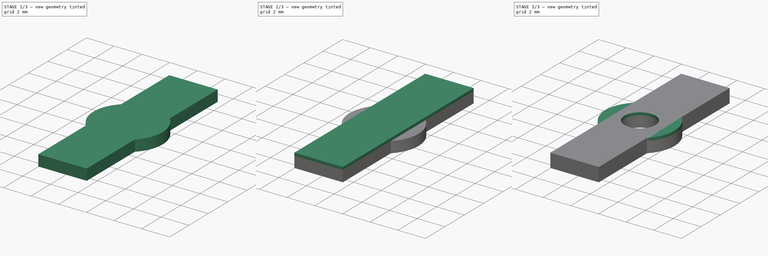
[diagram: build sequence overview — one tinted view per stage of 3, left to right]
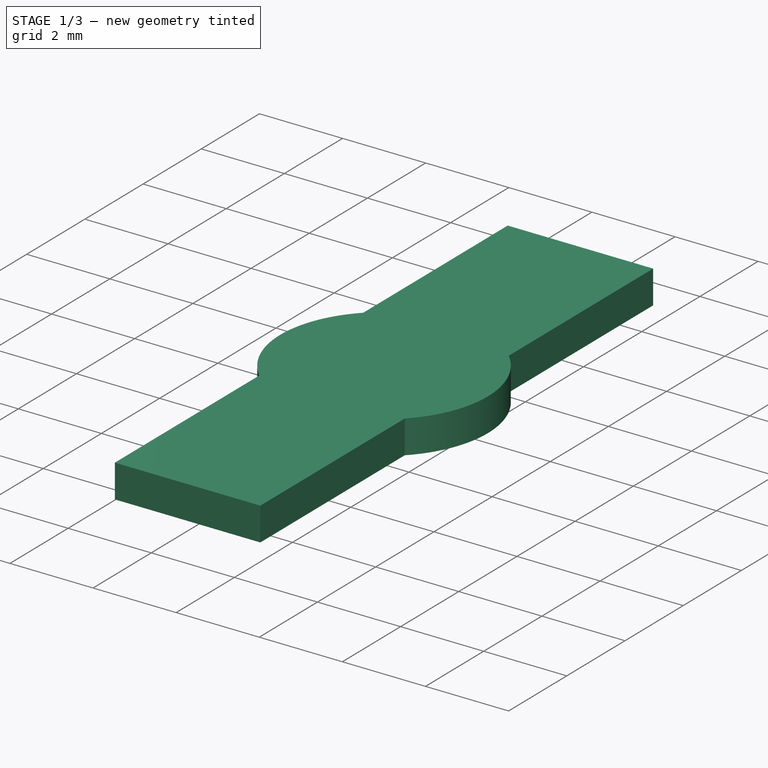
[diagram: stage 1 of 3 — iso view after this stage's code; geometry added in this stage tinted green]
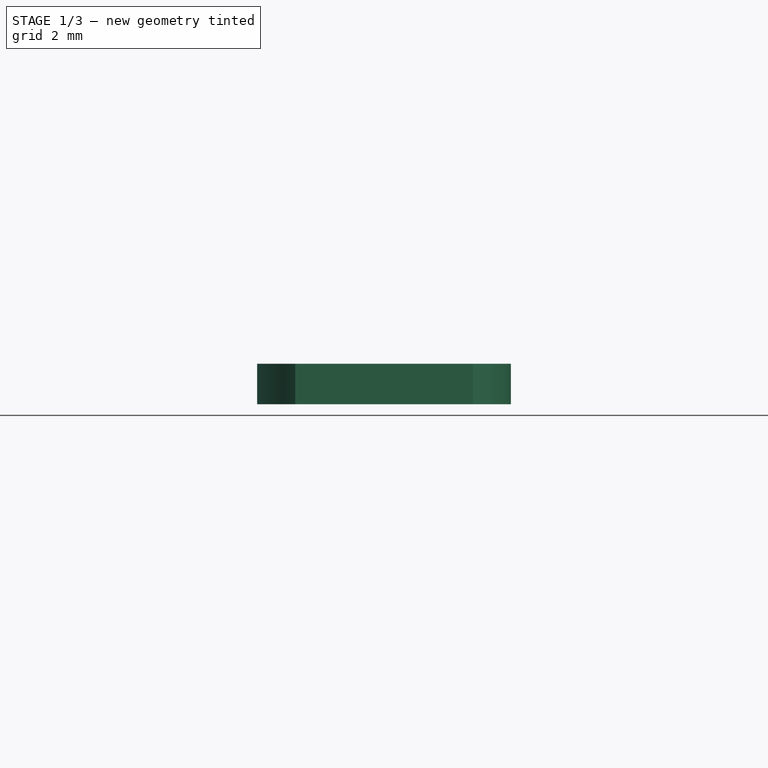
[diagram: stage 1 of 3 — front view after this stage's code; geometry added in this stage tinted green]
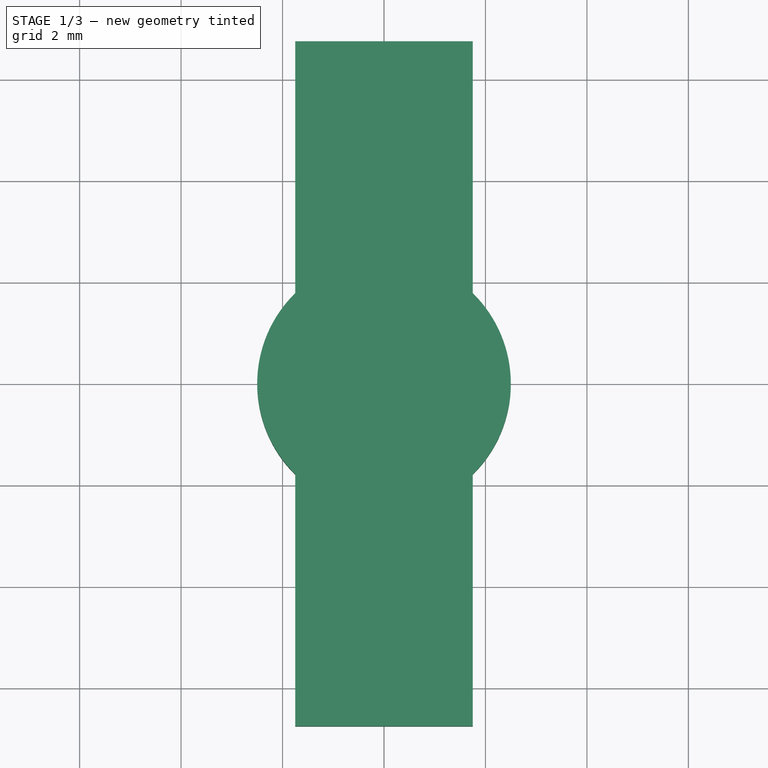
[diagram: stage 1 of 3 — top view after this stage's code; geometry added in this stage tinted green]
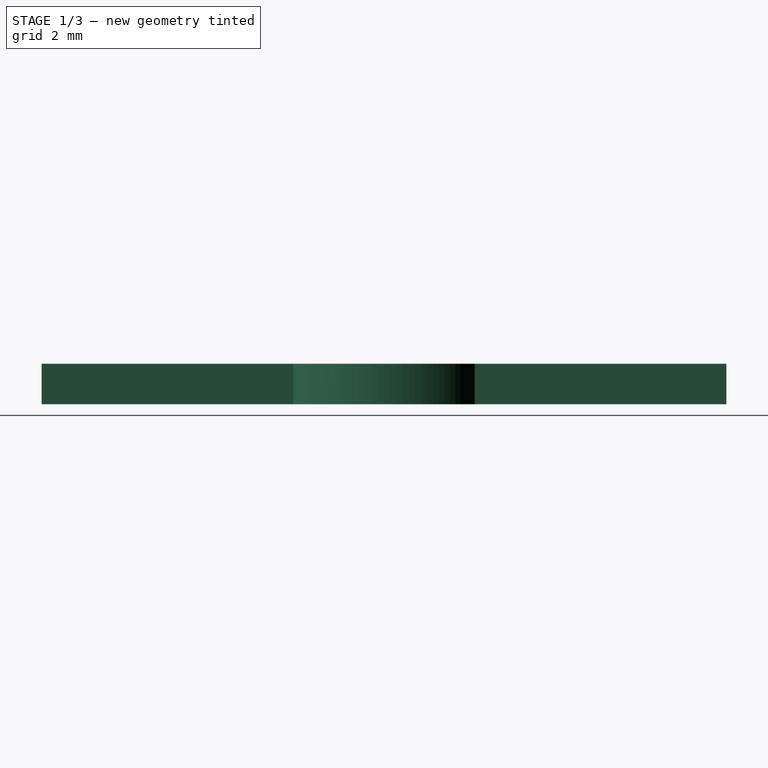
[diagram: stage 1 of 3 — right view after this stage's code; geometry added in this stage tinted green]
FCSTD DOCUMENT  (FreeCAD 0.18.4R)
Label: Stir_Bar
License: All rights reserved
LicenseURL: http://en.wikipedia.org/wiki/All_rights_reserved
objects: Sketcher::SketchObject×7, PartDesign::Pad×4, PartDesign::Pocket×3, PartDesign::Body×1
note: 22 computed .brp shape members not serialized (recipe doc carries the construction recipe); baked Part::Feature solids carry a one-line shape summary decoded from their .brp

FEATURE [Sketcher::SketchObject] Sketch
  MapMode = 5
  Support = -> [XY_Plane]
  sketch-geometry (4):
    g0: LineSegment StartX=-1.75 StartY=6.75 StartZ=0 EndX=1.75 EndY=6.75 EndZ=0
    g1: LineSegment StartX=1.75 StartY=6.75 StartZ=0 EndX=1.75 EndY=-6.75 EndZ=0
    g2: LineSegment StartX=1.75 StartY=-6.75 StartZ=0 EndX=-1.75 EndY=-6.75 EndZ=0
    g3: LineSegment StartX=-1.75 StartY=-6.75 StartZ=0 EndX=-1.75 EndY=6.75 EndZ=0
  constraints (12):
    c: Coincident(g0,g1)
    c: Coincident(g1,g2)
    c: Coincident(g2,g3)
    c: Coincident(g3,g0)
    c: Horizontal(g0)
    c: Horizontal(g2)
    c: Vertical(g1)
    c: Vertical(g3)
    c: Distance(g3) = 13.5
    c: Distance(g0) = 3.5
    c: DistanceX(g-1,g0) = 1.75
    c: DistanceY(g1,g-1) = 6.75
FEATURE [PartDesign::Pad] Pad
  Length = 0.8
  Length2 = 100
  Profile = -> Sketch
  Type = 0
FEATURE [Sketcher::SketchObject] Sketch001
  MapMode = 5
  Placement = pos=(0,0,0.8) rot=(0,0,1;0rad)
  Support = -> [Pad]
  sketch-geometry (1):
    g0: Circle CenterX=0 CenterY=0 CenterZ=0 NormalX=0 NormalY=0 NormalZ=1 AngleXU=0 Radius=1.125
  constraints (2):
    c: Coincident(g0,g-1)
    c: Diameter(g0) = 2.25
FEATURE [Sketcher::SketchObject] Sketch002
  MapMode = 5
  Placement = pos=(0,0,1.3) rot=(0,0,1;0rad)
  sketch-geometry (8):
    g0: LineSegment StartX=-0.5 StartY=5.95 StartZ=0 EndX=0.5 EndY=5.95 EndZ=0
    g1: LineSegment StartX=0.5 StartY=5.95 StartZ=0 EndX=0.5 EndY=2 EndZ=0
    g2: LineSegment StartX=0.5 StartY=2 StartZ=0 EndX=-0.5 EndY=2 EndZ=0
    g3: LineSegment StartX=-0.5 StartY=2 StartZ=0 EndX=-0.5 EndY=5.95 EndZ=0
    g4: LineSegment StartX=-0.5 StartY=-2 StartZ=0 EndX=0.5 EndY=-2 EndZ=0
    g5: LineSegment StartX=0.5 StartY=-2 StartZ=0 EndX=0.5 EndY=-5.95 EndZ=0
    g6: LineSegment StartX=0.5 StartY=-5.95 StartZ=0 EndX=-0.5 EndY=-5.95 EndZ=0
    g7: LineSegment StartX=-0.5 StartY=-5.95 StartZ=0 EndX=-0.5 EndY=-2 EndZ=0
  constraints (24):
    c: Coincident(g0,g1)
    c: Coincident(g1,g2)
    c: Coincident(g2,g3)
    c: Coincident(g3,g0)
    c: Horizontal(g0)
    c: Horizontal(g2)
    c: Vertical(g1)
    c: Vertical(g3)
    c: DistanceY(g-1,g0) = 5.95
    c: Distance(g0) = 1
    c: DistanceY(g-1,g1) = 2
    c: DistanceX(g-1,g1) = 0.5
    c: Coincident(g4,g5)
    c: Coincident(g5,g6)
    c: Coincident(g6,g7)
    c: Coincident(g7,g4)
    c: Horizontal(g4)
    c: Horizontal(g6)
    c: Vertical(g5)
    c: Vertical(g7)
    c: DistanceY(g6,g-1) = 5.95
    c: DistanceY(g4,g-1) = 2
    c: Distance(g6) = 1
    c: DistanceX(g-1,g4) = 0.5
FEATURE [Sketcher::SketchObject] Sketch003
  MapMode = 5
  Placement = pos=(0,0,0.8) rot=(0,0,1;0rad)
  Support = -> [Pad]
  sketch-geometry (1):
    g0: Circle CenterX=0 CenterY=0 CenterZ=0 NormalX=0 NormalY=0 NormalZ=1 AngleXU=0 Radius=2.5
  constraints (2):
    c: Coincident(g0,g-1)
    c: Diameter(g0) = 5
FEATURE [PartDesign::Pad] Pad001
  BaseFeature = -> Pad
  Length = 0.8
  Length2 = 100
  Profile = -> Sketch003
  Reversed = true
  Type = 0
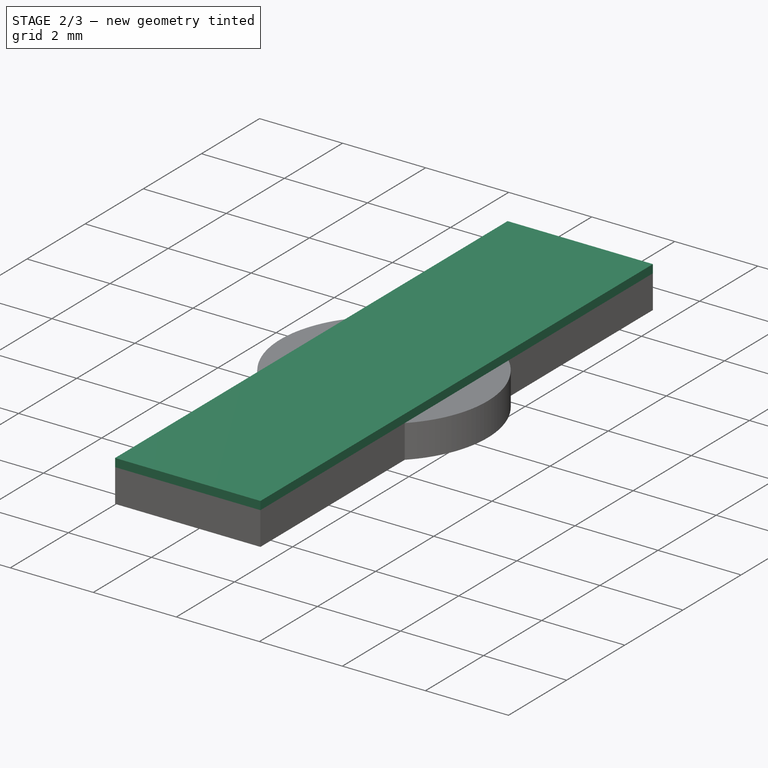
[diagram: stage 2 of 3 — iso view after this stage's code; geometry added in this stage tinted green]
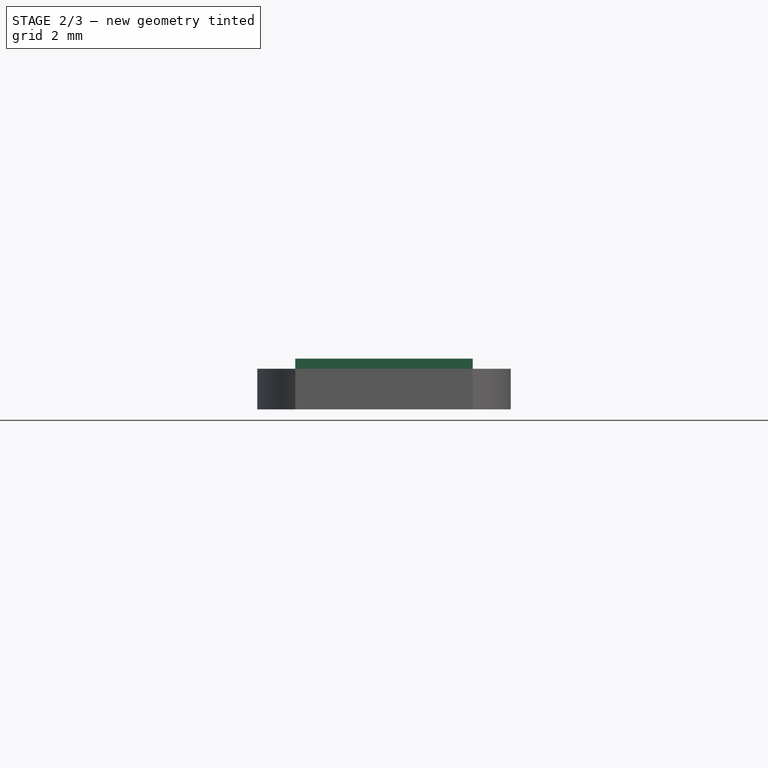
[diagram: stage 2 of 3 — front view after this stage's code; geometry added in this stage tinted green]
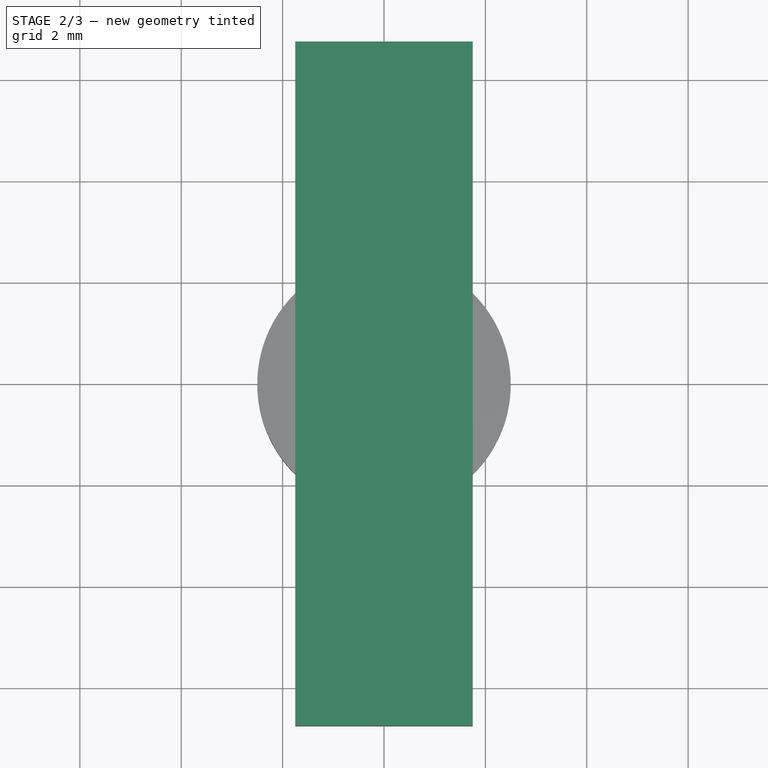
[diagram: stage 2 of 3 — top view after this stage's code; geometry added in this stage tinted green]
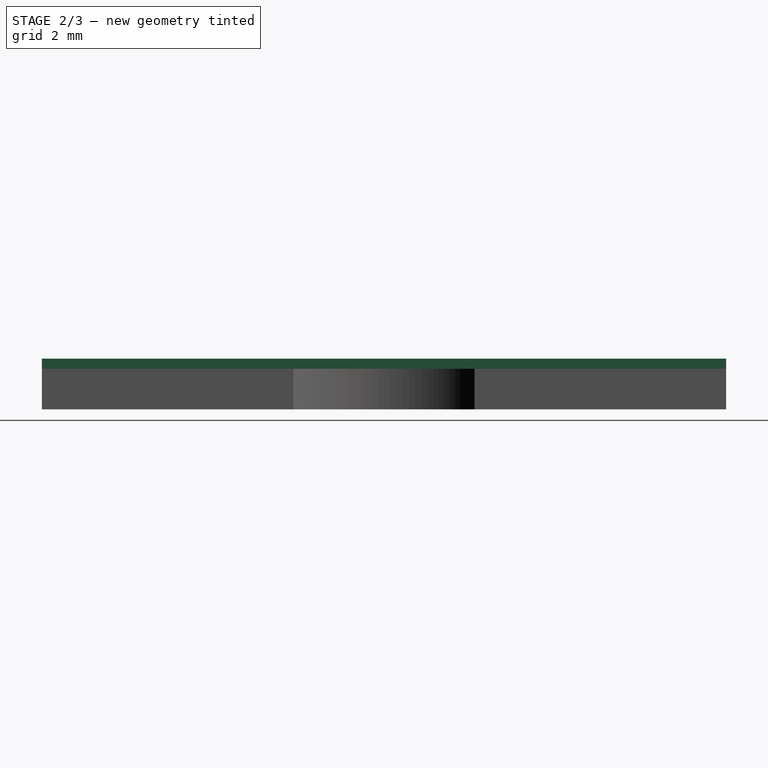
[diagram: stage 2 of 3 — right view after this stage's code; geometry added in this stage tinted green]
FEATURE [PartDesign::Pocket] Pocket
  BaseFeature = -> Pad001
  Length = 1.2
  Length2 = 100
  Profile = -> Sketch002
  Type = 0
FEATURE [PartDesign::Pocket] Pocket001
  BaseFeature = -> Pocket
  Length = 5
  Length2 = 100
  Profile = -> Sketch001
  Type = 0
FEATURE [Sketcher::SketchObject] Sketch004
  MapMode = 5
  Placement = pos=(0,0,0.8) rot=(0,0,1;0rad)
  Support = -> [Pocket001]
  sketch-geometry (4):
    g0: LineSegment StartX=-1.75 StartY=6.75 StartZ=0 EndX=1.75 EndY=6.75 EndZ=0
    g1: LineSegment StartX=1.75 StartY=6.75 StartZ=0 EndX=1.75 EndY=-6.75 EndZ=0
    g2: LineSegment StartX=1.75 StartY=-6.75 StartZ=0 EndX=-1.75 EndY=-6.75 EndZ=0
    g3: LineSegment StartX=-1.75 StartY=-6.75 StartZ=0 EndX=-1.75 EndY=6.75 EndZ=0
  constraints (12):
    c: Coincident(g0,g1)
    c: Coincident(g1,g2)
    c: Coincident(g2,g3)
    c: Coincident(g3,g0)
    c: Horizontal(g0)
    c: Horizontal(g2)
    c: Vertical(g1)
    c: Vertical(g3)
    c: Distance(g0) = 3.5
    c: Distance(g1) = 13.5
    c: DistanceY(g1,g-1) = 6.75
    c: DistanceX(g-1,g0) = 1.75
FEATURE [PartDesign::Pad] Pad002
  BaseFeature = -> Pocket001
  Length = 0.2
  Length2 = 100
  Profile = -> Sketch004
  Type = 0
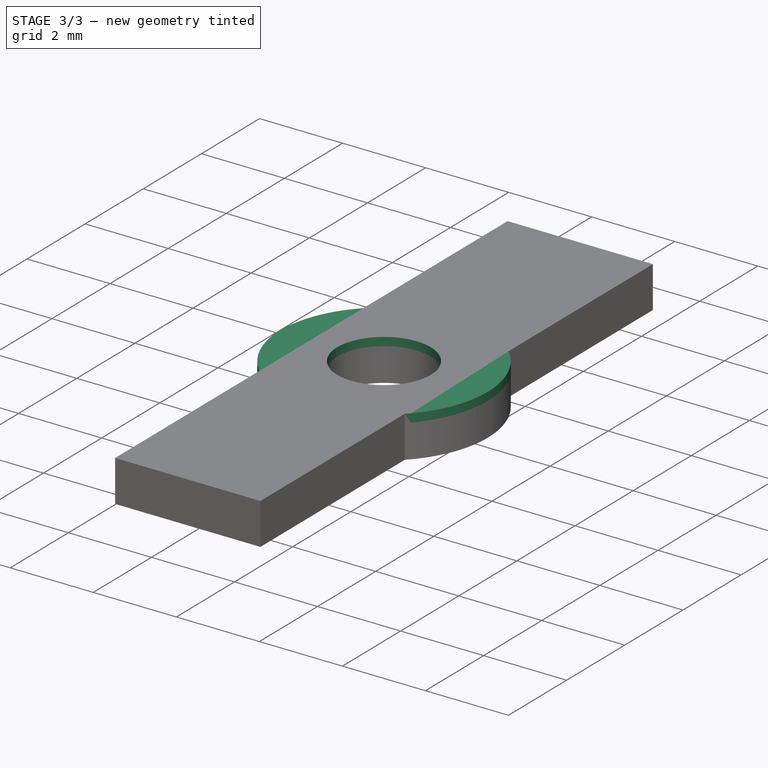
[diagram: stage 3 of 3 — iso view after this stage's code; geometry added in this stage tinted green]
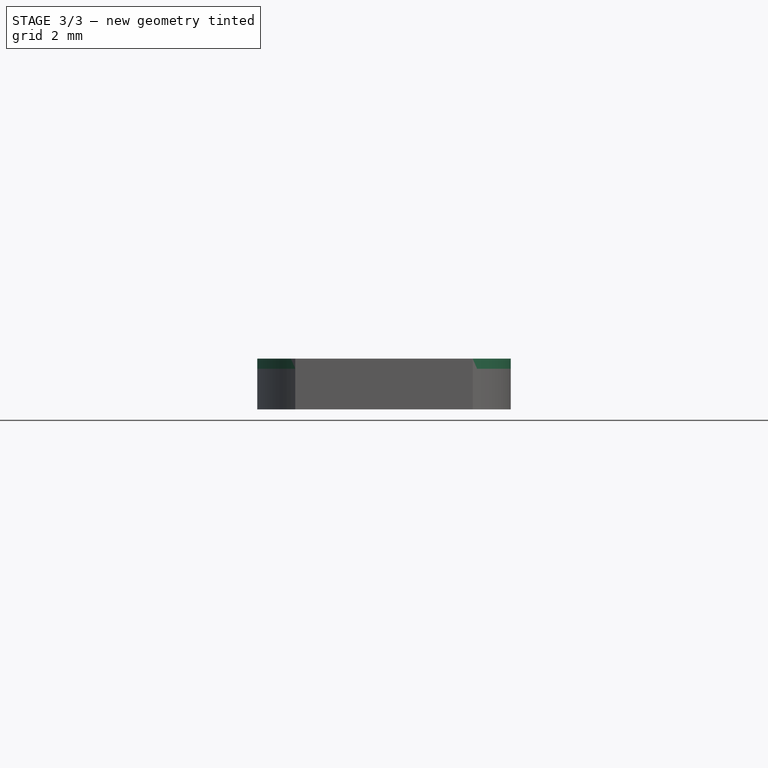
[diagram: stage 3 of 3 — front view after this stage's code; geometry added in this stage tinted green]
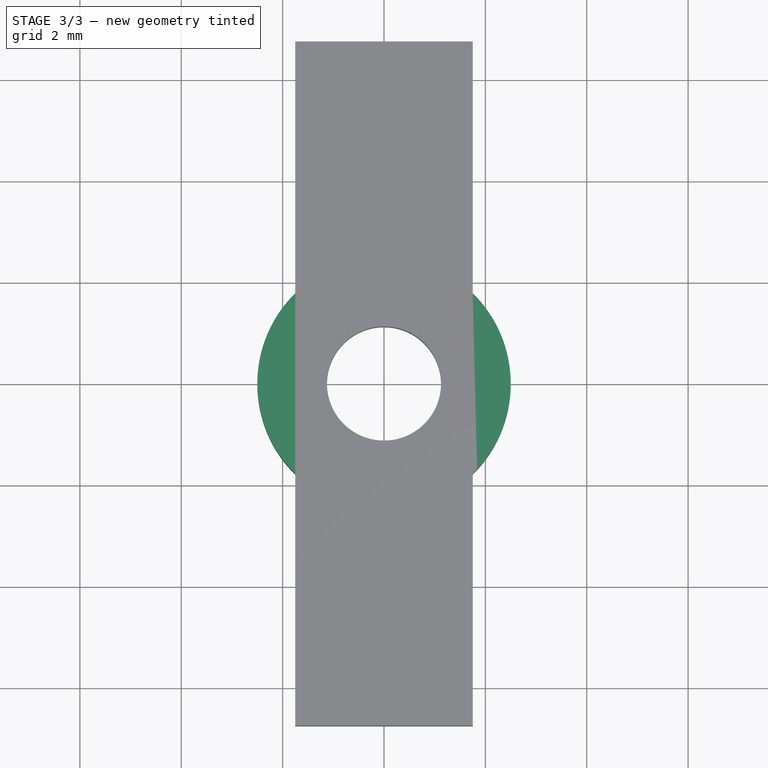
[diagram: stage 3 of 3 — top view after this stage's code; geometry added in this stage tinted green]
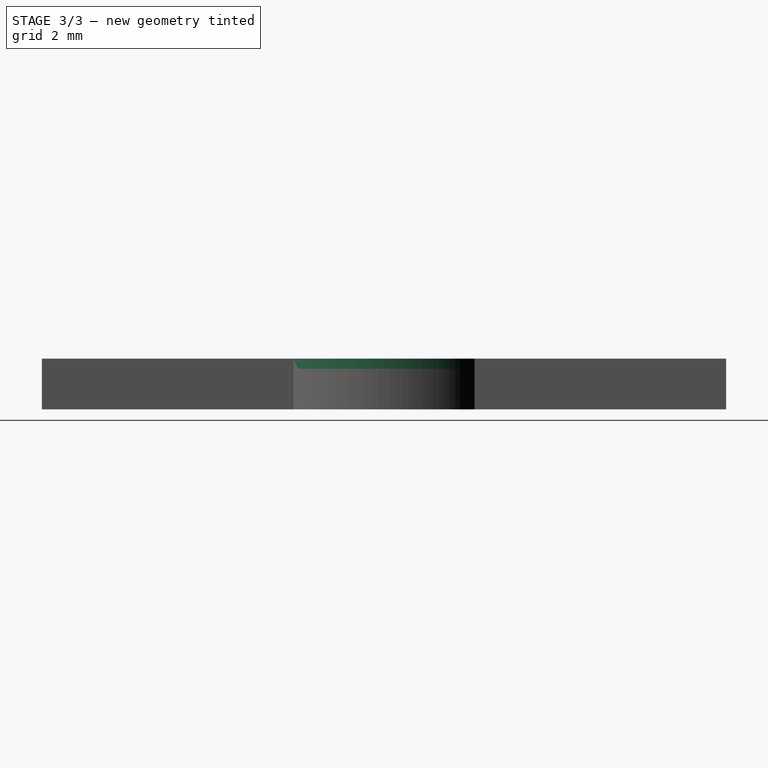
[diagram: stage 3 of 3 — right view after this stage's code; geometry added in this stage tinted green]
FEATURE [Sketcher::SketchObject] Sketch005
  MapMode = 5
  Placement = pos=(0,0,0.8) rot=(0,0,1;0rad)
  Support = -> [Pad002]
  sketch-geometry (1):
    g0: Circle CenterX=0 CenterY=0 CenterZ=0 NormalX=0 NormalY=0 NormalZ=1 AngleXU=0 Radius=2.5
  constraints (2):
    c: Coincident(g0,g-1)
    c: Diameter(g0) = 5
FEATURE [PartDesign::Pad] Pad003
  BaseFeature = -> Pad002
  Length = 0.2
  Length2 = 100
  Profile = -> Sketch005
  Type = 0
FEATURE [Sketcher::SketchObject] Sketch006
  MapMode = 5
  Placement = pos=(0,0,1) rot=(0,0,1;0rad)
  Support = -> [Pad003]
  sketch-geometry (1):
    g0: Circle CenterX=0 CenterY=0 CenterZ=0 NormalX=0 NormalY=0 NormalZ=1 AngleXU=0 Radius=1.125
  constraints (2):
    c: Coincident(g0,g-1)
    c: Diameter(g0) = 2.25
FEATURE [PartDesign::Pocket] Pocket002
  BaseFeature = -> Pad003
  Length = 5
  Length2 = 100
  Profile = -> Sketch006
  Type = 0
FEATURE [PartDesign::Body] Body
  Group = -> [Sketch,Pad,Sketch001,Sketch002,Sketch003,Pad001,Pocket,Pocket001,Sketch004,Pad002,Sketch005,Pad003,Sketch006,Pocket002]
  Origin = -> Origin
  Tip = -> Pocket002
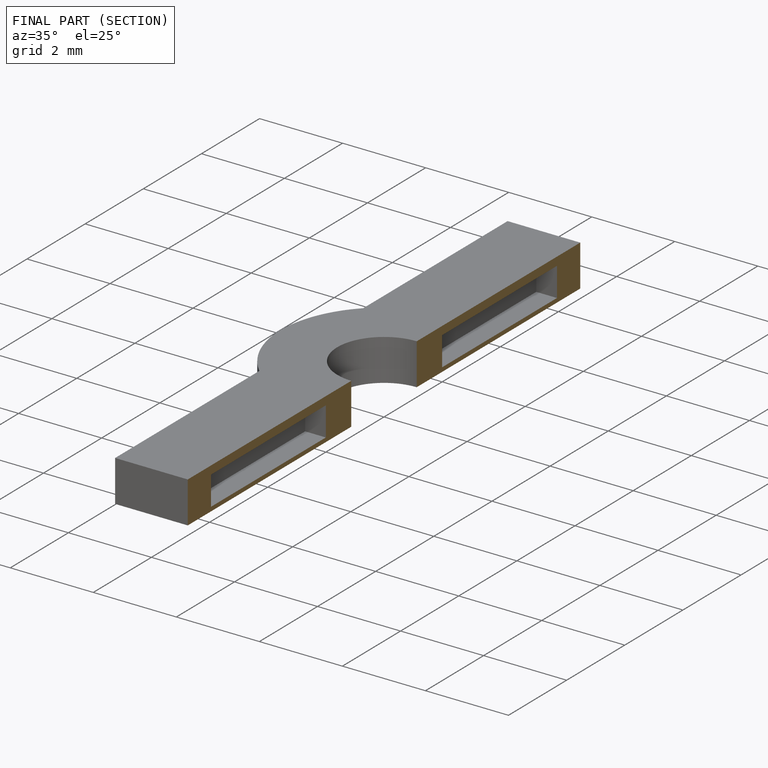
[diagram: finished part — half-section view (interior)]
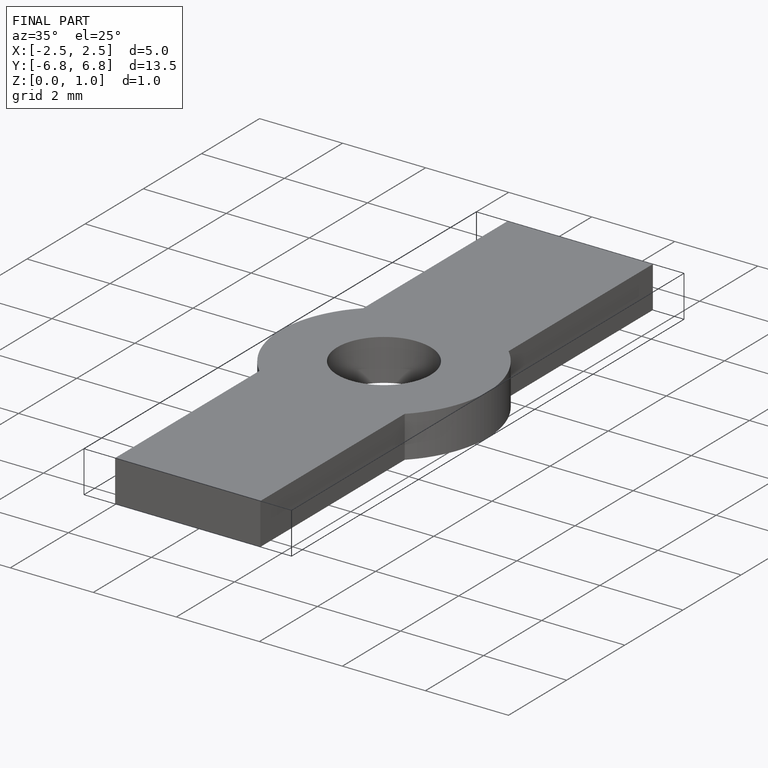
[diagram: finished part — iso view with bounding-box wireframe]
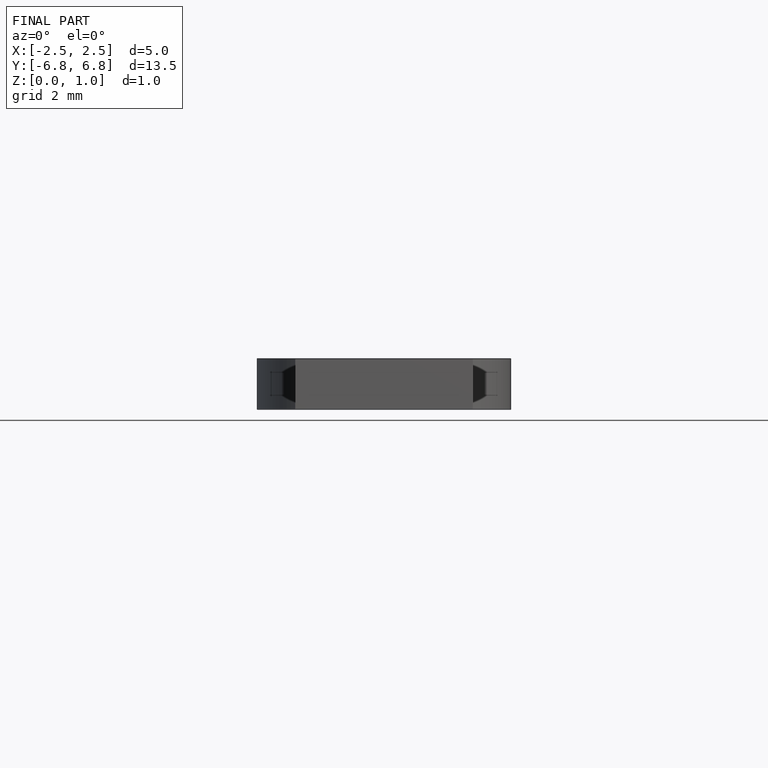
[diagram: finished part — front view with bounding-box wireframe]
